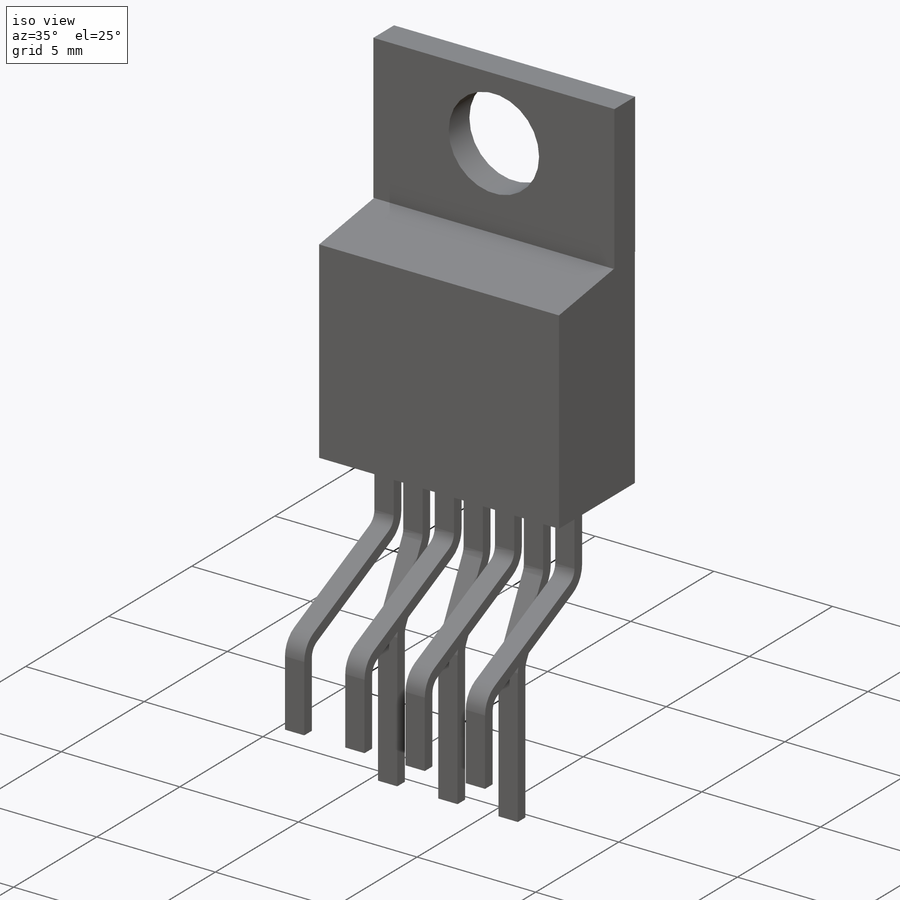
[diagram: iso view]
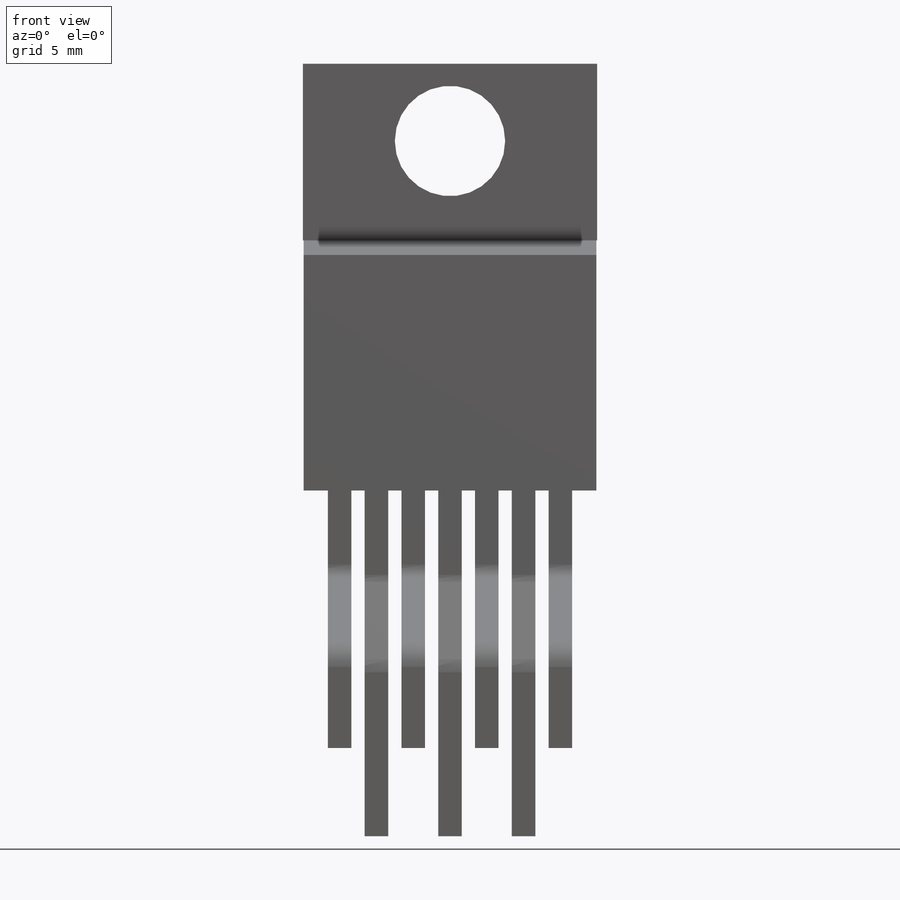
[diagram: front view]
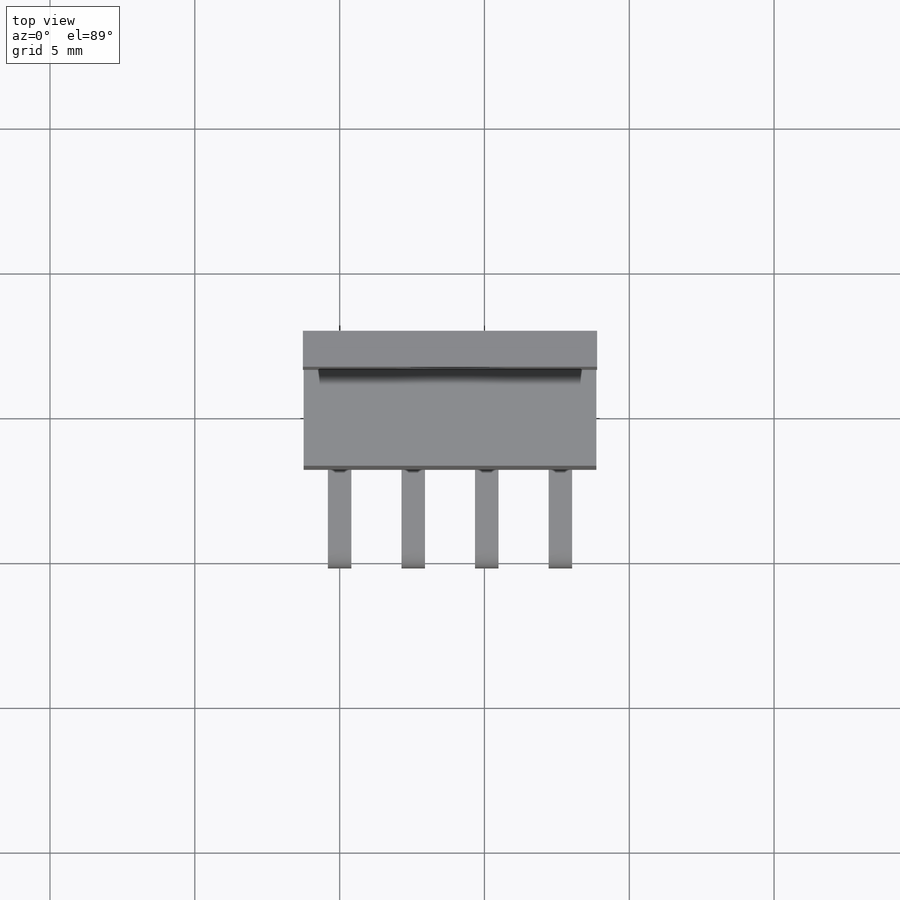
[diagram: top view]
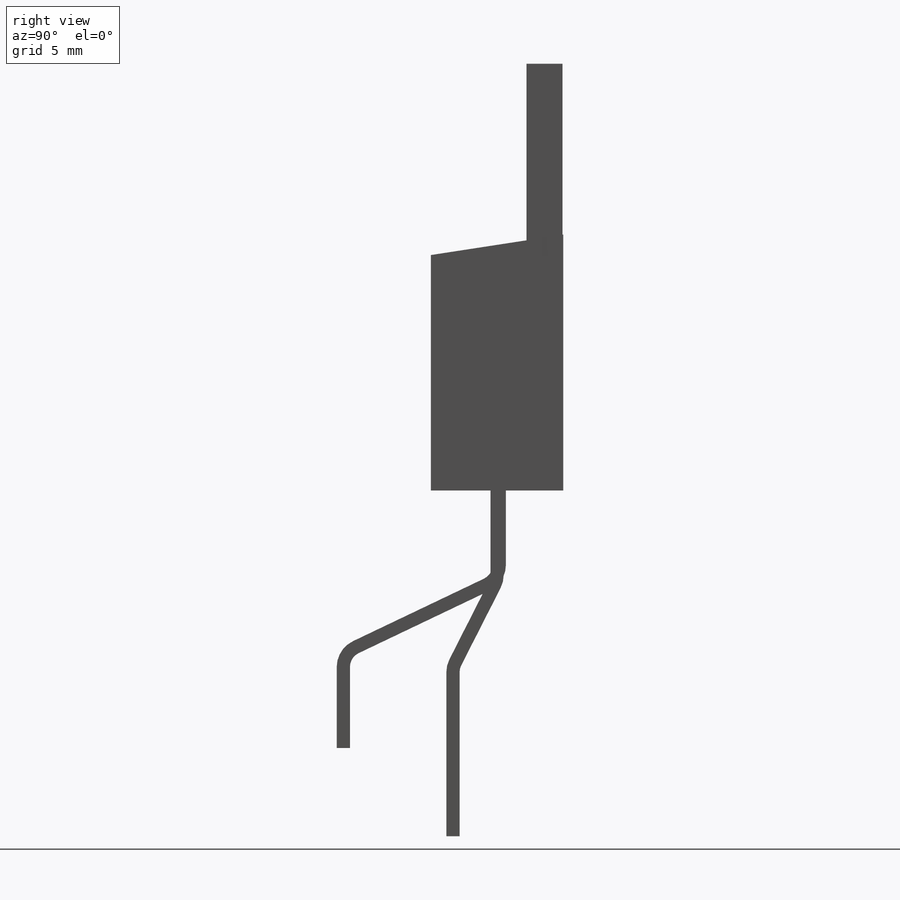
[diagram: right view]
SOLIDWORKS PART (.sldprt)
format: sldprt  version: not decoded by parser v0  size: 380,928 bytes
history: native  units: mm
features: sketch x9, cut_extrude x6, plane x4, pattern_linear x2, material x1, extrude x1 (+12 scaffold rows collapsed)
feature tree (35):
  scaffold x12  (default folders/planes/origin — collapsed)
  material  "Material <not specified>"
  plane  "Plane2"  Offset=1.397mm
  plane  "Plane3"  Offset=6.35mm
  plane  "Plane4"  Offset=2.54mm
  sketch  "Sketch2"  dims[c1.D1=10.16mm c1.D2=4.572mm c1.D3=7.62mm c1.D4=7.5946mm c2.D3=1.27mm]
  extrude  "Base-Extrude"  Depth=14.732mm
  sketch  "Sketch3"  dims[D1=1.27mm D2=6.096mm D3=6.604mm]
  cut_extrude  "Cut-Extrude1"  [1 undecoded]
  sketch  "Sketch5"
  cut_extrude  "Cut-Extrude4"  Depth=0.0254mm
  sketch  "Sketch6"
  cut_extrude  "Cut-Extrude5"  Depth=0.0254mm
  sketch  "Sketch7"  dims[D1=1.2446mm D2=3.302mm D3=1.2446mm]
  cut_extrude  "Cut-Extrude6"  Depth=0.0254mm
  sketch  "Sketch9"  dims[c1.D1=7.62mm c1.D2=5.3848mm c1.D3=2.5654mm c1.D4=6.096mm c1.D5=2.54mm c2.D1=0.8128mm c2.D5=0.2286mm c2.D6=0.2286mm c2.D7=5.0mm]
  pattern_linear  "LPattern2"  Count1=4 Count2=1 Spacing1=2.54mm Spacing2=50mm
  plane  "Plane5"  Offset=1.27mm
  sketch  "Sketch10"  dims[D5=0.762mm D1=1.524mm D2=11.938mm D3=5.842mm D4=3.0988mm]
  cut_extrude  "Boss-Extrude-Thin2"  Depth=0.8128mm
  pattern_linear  "LPattern3"  Count1=3 Count2=1 Spacing1=2.54mm Spacing2=50mm
  sketch  "Sketch4"  dims[D1=3.81mm D2=2.667mm]
  cut_extrude  "Cut-Extrude2"  Depth=14.732mm
  sketch  "Component_Outline"
decode coverage: 14 of 18 modeling features carry decoded parameters
note: 1 parameter value undecoded
note: suppression state not decoded; provenance and decode notes live in map.json
